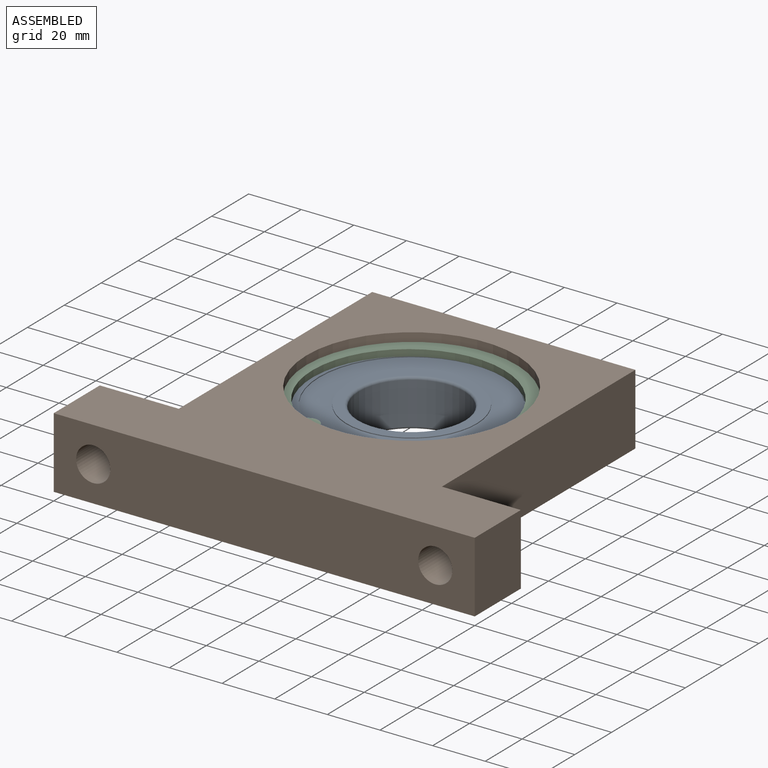
[diagram: assembled view]
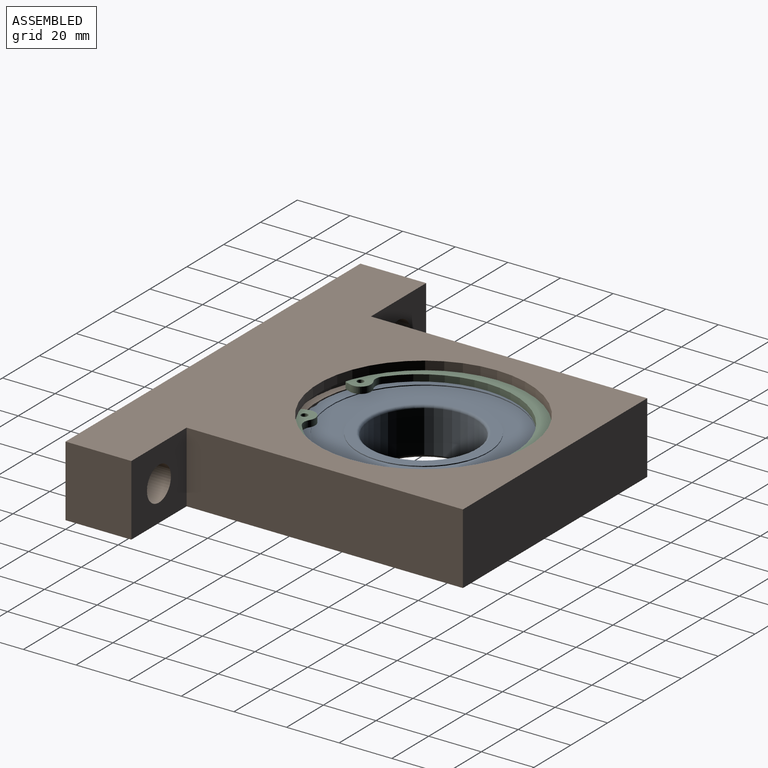
[diagram: assembled view, second angle]
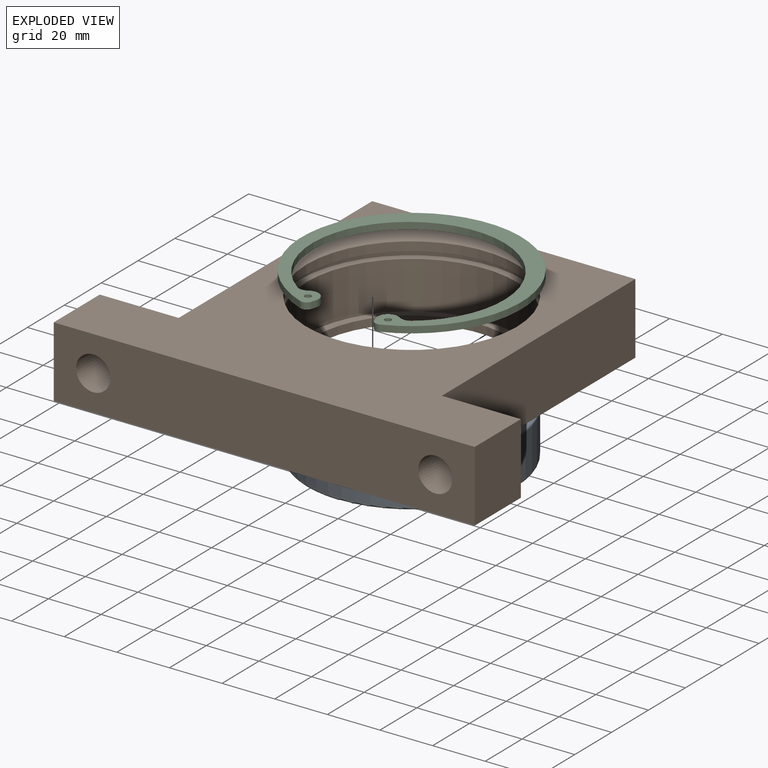
[diagram: exploded view]
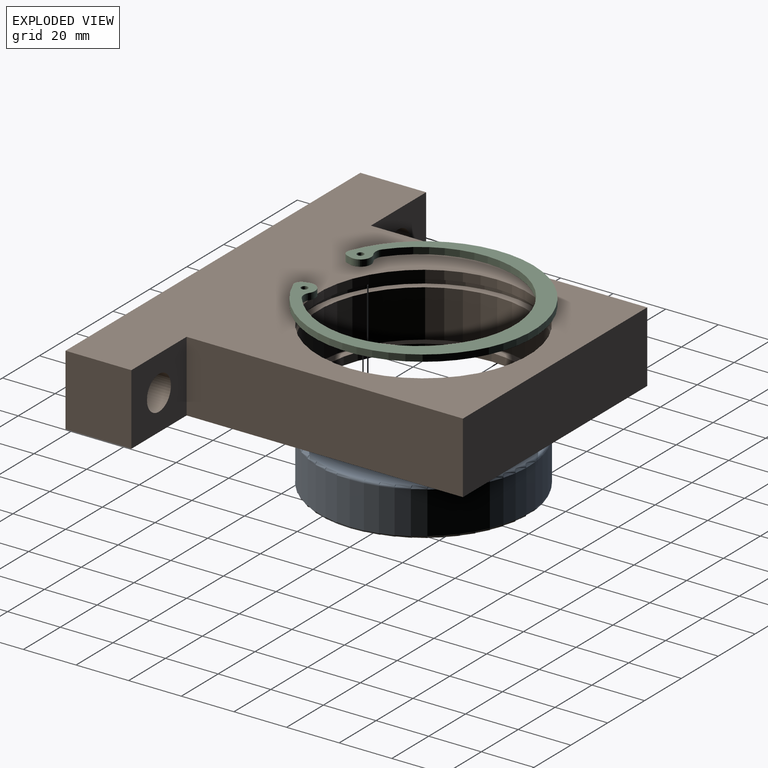
[diagram: exploded view, second angle]
ASSEMBLY  parts=3 mates=2
PART A: 16 faces, bbox 18x86.6x86.6 mm
  f0: plane 49.54x49.54mm, normal (-1,0,0), area 542.3mm2, adj f1,f15
  f1: torus R=21mm, axis (1,0,0), area 201mm2, adj f0,f2
  f2: cylinder r=20mm len=40mm, axis (-1,0,0), area 2010.6mm2, adj f1,f3
  f3: torus R=21mm, axis (1,0,0), area 201mm2, adj f2,f4
  f4: plane 49.54x49.54mm, normal (1,0,0), area 542.3mm2, adj f3,f5
  f5: cylinder r=24.77mm len=49.54mm, axis (-1,0,0), area 50mm2, adj f4,f6
  f6: plane 70.31x70.31mm, normal (1,0,0), area 1955.2mm2, adj f5,f7
  f7: cylinder r=35.16mm len=70.31mm, axis (-1,0,0), area 70.9mm2, adj f6,f8
  f8: plane 78x78mm, normal (1,0,0), area 895.5mm2, adj f7,f9
  f9: torus R=39mm, axis (1,0,0), area 391.2mm2, adj f8,f10
  f10: cylinder r=40mm len=80mm, axis (-1,0,0), area 4021.2mm2, adj f9,f11
  f11: torus R=39mm, axis (1,0,0), area 391.2mm2, adj f10,f12
  f12: plane 78x78mm, normal (-1,0,0), area 895.5mm2, adj f11,f13
  f13: cylinder r=35.16mm len=70.31mm, axis (-1,0,0), area 70.9mm2, adj f12,f14
  f14: plane 70.31x70.31mm, normal (-1,0,0), area 1955.2mm2, adj f13,f15
  f15: cylinder r=24.77mm len=49.54mm, axis (-1,0,0), area 50mm2, adj f0,f14
PART B: 19 faces, bbox 160x130x27 mm
  f0: plane 105x27mm, normal (-1,0,0), area 2835mm2, adj f1,f2,f4,f7
  f1: plane 160x130mm, normal (0,0,1), area 9473.5mm2, adj f0,f2,f4,f5,f14,f15,f16,f17
  f2: plane 100x27mm, normal (0,1,0), area 2700mm2, adj f0,f1,f7,f18
  f3: cylinder r=40mm len=80mm, axis (0,0,1), area 4523.9mm2, adj f6,f9
  f4: plane 30x27mm, normal (0,1,0), area 677.3mm2, adj f0,f1,f7,f12,f15
  f5: cylinder r=40mm len=80mm, axis (0,0,1), area 829.4mm2, adj f1,f8
  f6: plane 80x80mm, normal (0,0,1), area 725.7mm2, adj f3,f13
  f7: plane 160x130mm, normal (0,0,-1), area 10199.2mm2, adj f0,f2,f4,f13,f14,f15,f16,f17
  f8: plane 85.5x85.5mm, normal (0,0,-1), area 714.9mm2, adj f5,f10
  f9: plane 85.5x85.5mm, normal (0,0,1), area 714.9mm2, adj f3,f10
  f10: cylinder r=42.75mm len=85.5mm, axis (0,0,1), area 725.2mm2, adj f8,f9
  f11: cylinder r=6.5mm len=25mm, axis (0,1,0), area 1021mm2, adj f14,f17
  f12: cylinder r=6.5mm len=25mm, axis (0,1,0), area 1021mm2, adj f4,f14
  f13: cylinder r=37mm len=74mm, axis (0,0,1), area 697.4mm2, adj f6,f7
  f14: plane 160x27mm, normal (0,-1,0), area 4054.5mm2, adj f1,f7,f11,f12,f15,f16
  f15: plane 27x25mm, normal (-1,0,0), area 675mm2, adj f1,f4,f7,f14
  f16: plane 27x25mm, normal (1,0,0), area 675mm2, adj f1,f7,f14,f17
  f17: plane 30x27mm, normal (0,1,0), area 677.3mm2, adj f1,f7,f11,f16,f18
  f18: plane 105x27mm, normal (1,0,0), area 2835mm2, adj f1,f2,f7,f17
PART C: 14 faces, bbox 2.5x80.8x83.5 mm
  f0: cylinder r=41.75mm len=83.5mm, axis (1,0,0), area 578.2mm2, adj f1,f2,f12,f13
  f1: cylinder r=2.5mm len=3.29mm, axis (1,0,0), area 10.2mm2, adj f0,f3,f12,f13
  f2: cylinder r=2.5mm len=3.29mm, axis (1,0,0), area 10.2mm2, adj f0,f9,f12,f13
  f3: plane 2.5x1.56mm, normal (0,-0.3,-0.95), area 4.1mm2, adj f1,f4,f12,f13
  f4: cylinder r=4mm len=6.13mm, axis (1,0,0), area 24.4mm2, adj f3,f5,f12,f13
  f5: cylinder r=4mm len=4.52mm, axis (1,0,0), area 12mm2, adj f4,f6,f12,f13
  f6: cylinder r=36.5mm len=73mm, axis (1,0,0), area 456.2mm2, adj f5,f7,f12,f13
  f7: cylinder r=4mm len=4.52mm, axis (1,0,0), area 12mm2, adj f6,f8,f12,f13
  f8: cylinder r=4mm len=6.13mm, axis (1,0,0), area 24.4mm2, adj f7,f9,f12,f13
  f9: plane 2.5x1.56mm, normal (0,-0.3,0.95), area 4.1mm2, adj f2,f8,f12,f13
  f10: cylinder r=1.25mm len=2.5mm, axis (1,0,0), area 19.6mm2, adj f12,f13
  f11: cylinder r=1.25mm len=2.5mm, axis (1,0,0), area 19.6mm2, adj f12,f13
  f12: plane 83.5x80.82mm, normal (-1,0,0), area 1249.3mm2, adj f0,f1,f2,f3,f4,f5,f6,f7
  f13: plane 83.5x80.82mm, normal (1,0,0), area 1249.3mm2, adj f0,f1,f2,f3,f4,f5,f6,f7
PLACE A rot(axis=(0,-1,0),90deg) t=(0,0,-10.5)mm
PLACE B at identity
PLACE C rot(axis=(0,-1,0),90deg) t=(0,0,8.75)mm
MATE revolute C.f0 <-> A.f1  axis (0,0,-1) through (0,0,7.5)mm
MATE revolute A.f1 <-> B.f3  axis (0,0,-1) through (0,0,-10.5)mm
